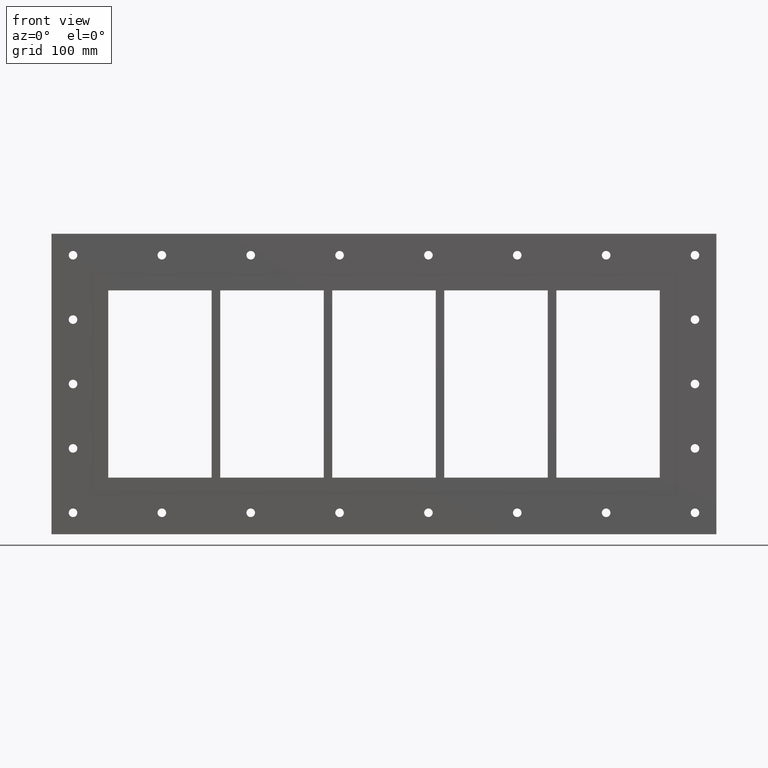
[diagram: clean part render]
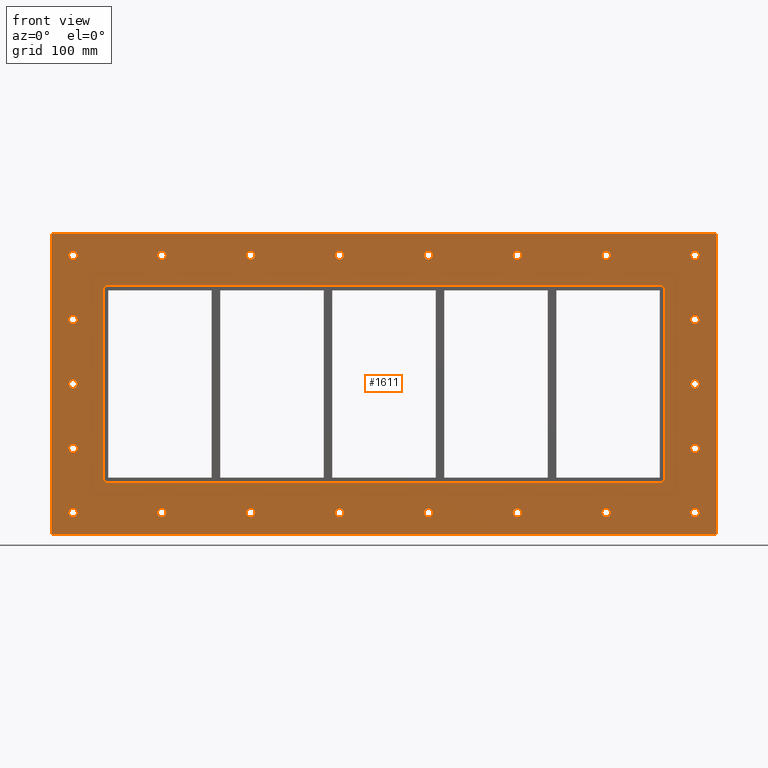
[diagram: same view with one face highlighted and labeled with its STEP entity id]
A machine part, front view. The second image highlights one B-rep face of the part: STEP entity #1611.
In plain terms, the highlighted planar face has unit normal (0, 1, 0).
Its self-contained STEP definition (entity closure, byte-faithful):
#84=CARTESIAN_POINT('',(-357.25000000000011,0.0,-150.0));
#85=VERTEX_POINT('',#84);
#86=CARTESIAN_POINT('',(-362.25000000000011,0.0,-150.0));
#87=DIRECTION('',(0.0,1.0,0.0));
#88=DIRECTION('',(1.0,0.0,0.0));
#89=AXIS2_PLACEMENT_3D('',#86,#87,#88);
#90=CIRCLE('',#89,5.0);
#91=EDGE_CURVE('',#85,#85,#90,.T.);
#112=CARTESIAN_POINT('',(367.25000000000011,0.0,-75.0));
#113=VERTEX_POINT('',#112);
#114=CARTESIAN_POINT('',(362.25000000000011,0.0,-75.0));
#115=DIRECTION('',(0.0,1.0,0.0));
#116=DIRECTION('',(1.0,0.0,0.0));
#117=AXIS2_PLACEMENT_3D('',#114,#115,#116);
#118=CIRCLE('',#117,5.0);
#119=EDGE_CURVE('',#113,#113,#118,.T.);
#140=CARTESIAN_POINT('',(-357.25000000000011,0.0,-75.0));
#141=VERTEX_POINT('',#140);
#142=CARTESIAN_POINT('',(-362.25000000000011,0.0,-75.0));
#143=DIRECTION('',(0.0,1.0,0.0));
#144=DIRECTION('',(1.0,0.0,0.0));
#145=AXIS2_PLACEMENT_3D('',#142,#143,#144);
#146=CIRCLE('',#145,5.0);
#147=EDGE_CURVE('',#141,#141,#146,.T.);
#168=CARTESIAN_POINT('',(367.25000000000011,0.0,0.0));
#169=VERTEX_POINT('',#168);
#170=CARTESIAN_POINT('',(362.25000000000011,0.0,0.0));
#171=DIRECTION('',(0.0,1.0,0.0));
#172=DIRECTION('',(1.0,0.0,0.0));
#173=AXIS2_PLACEMENT_3D('',#170,#171,#172);
#174=CIRCLE('',#173,5.0);
#175=EDGE_CURVE('',#169,#169,#174,.T.);
#196=CARTESIAN_POINT('',(-357.25000000000011,0.0,0.0));
#197=VERTEX_POINT('',#196);
#198=CARTESIAN_POINT('',(-362.25000000000011,0.0,0.0));
#199=DIRECTION('',(0.0,1.0,0.0));
#200=DIRECTION('',(1.0,0.0,0.0));
#201=AXIS2_PLACEMENT_3D('',#198,#199,#200);
#202=CIRCLE('',#201,5.0);
#203=EDGE_CURVE('',#197,#197,#202,.T.);
#224=CARTESIAN_POINT('',(367.25000000000011,0.0,75.0));
#225=VERTEX_POINT('',#224);
#226=CARTESIAN_POINT('',(362.25000000000011,0.0,75.0));
#227=DIRECTION('',(0.0,1.0,0.0));
#228=DIRECTION('',(1.0,0.0,0.0));
#229=AXIS2_PLACEMENT_3D('',#226,#227,#228);
#230=CIRCLE('',#229,5.0);
#231=EDGE_CURVE('',#225,#225,#230,.T.);
#252=CARTESIAN_POINT('',(-357.25000000000011,0.0,75.0));
#253=VERTEX_POINT('',#252);
#254=CARTESIAN_POINT('',(-362.25000000000011,0.0,75.0));
#255=DIRECTION('',(0.0,1.0,0.0));
#256=DIRECTION('',(1.0,0.0,0.0));
#257=AXIS2_PLACEMENT_3D('',#254,#255,#256);
#258=CIRCLE('',#257,5.0);
#259=EDGE_CURVE('',#253,#253,#258,.T.);
#280=CARTESIAN_POINT('',(-253.75,0.0,150.0));
#281=VERTEX_POINT('',#280);
#282=CARTESIAN_POINT('',(-258.75,0.0,150.0));
#283=DIRECTION('',(0.0,1.0,0.0));
#284=DIRECTION('',(1.0,0.0,0.0));
#285=AXIS2_PLACEMENT_3D('',#282,#283,#284);
#286=CIRCLE('',#285,5.0);
#287=EDGE_CURVE('',#281,#281,#286,.T.);
#308=CARTESIAN_POINT('',(-253.75,0.0,-150.0));
#309=VERTEX_POINT('',#308);
#310=CARTESIAN_POINT('',(-258.75,0.0,-150.0));
#311=DIRECTION('',(0.0,1.0,0.0));
#312=DIRECTION('',(1.0,0.0,0.0));
#313=AXIS2_PLACEMENT_3D('',#310,#311,#312);
#314=CIRCLE('',#313,5.0);
#315=EDGE_CURVE('',#309,#309,#314,.T.);
#336=CARTESIAN_POINT('',(-150.25,0.0,150.0));
#337=VERTEX_POINT('',#336);
#338=CARTESIAN_POINT('',(-155.25,0.0,150.0));
#339=DIRECTION('',(0.0,1.0,0.0));
#340=DIRECTION('',(1.0,0.0,0.0));
#341=AXIS2_PLACEMENT_3D('',#338,#339,#340);
#342=CIRCLE('',#341,5.0);
#343=EDGE_CURVE('',#337,#337,#342,.T.);
#364=CARTESIAN_POINT('',(-150.25,0.0,-150.0));
#365=VERTEX_POINT('',#364);
#366=CARTESIAN_POINT('',(-155.25,0.0,-150.0));
#367=DIRECTION('',(0.0,1.0,0.0));
#368=DIRECTION('',(1.0,0.0,0.0));
#369=AXIS2_PLACEMENT_3D('',#366,#367,#368);
#370=CIRCLE('',#369,5.0);
#371=EDGE_CURVE('',#365,#365,#370,.T.);
#392=CARTESIAN_POINT('',(-46.749999999999972,0.0,150.0));
#393=VERTEX_POINT('',#392);
#394=CARTESIAN_POINT('',(-51.749999999999972,0.0,150.0));
#395=DIRECTION('',(0.0,1.0,0.0));
#396=DIRECTION('',(1.0,0.0,0.0));
#397=AXIS2_PLACEMENT_3D('',#394,#395,#396);
#398=CIRCLE('',#397,5.0);
#399=EDGE_CURVE('',#393,#393,#398,.T.);
#420=CARTESIAN_POINT('',(-46.749999999999972,0.0,-150.0));
#421=VERTEX_POINT('',#420);
#422=CARTESIAN_POINT('',(-51.749999999999972,0.0,-150.0));
#423=DIRECTION('',(0.0,1.0,0.0));
#424=DIRECTION('',(1.0,0.0,0.0));
#425=AXIS2_PLACEMENT_3D('',#422,#423,#424);
#426=CIRCLE('',#425,5.0);
#427=EDGE_CURVE('',#421,#421,#426,.T.);
#448=CARTESIAN_POINT('',(56.750000000000043,0.0,150.0));
#449=VERTEX_POINT('',#448);
#450=CARTESIAN_POINT('',(51.750000000000043,0.0,150.0));
#451=DIRECTION('',(0.0,1.0,0.0));
#452=DIRECTION('',(1.0,0.0,0.0));
#453=AXIS2_PLACEMENT_3D('',#450,#451,#452);
#454=CIRCLE('',#453,5.0);
#455=EDGE_CURVE('',#449,#449,#454,.T.);
#476=CARTESIAN_POINT('',(56.750000000000043,0.0,-150.0));
#477=VERTEX_POINT('',#476);
#478=CARTESIAN_POINT('',(51.750000000000043,0.0,-150.0));
#479=DIRECTION('',(0.0,1.0,0.0));
#480=DIRECTION('',(1.0,0.0,0.0));
#481=AXIS2_PLACEMENT_3D('',#478,#479,#480);
#482=CIRCLE('',#481,5.0);
#483=EDGE_CURVE('',#477,#477,#482,.T.);
#504=CARTESIAN_POINT('',(160.25000000000006,0.0,150.0));
#505=VERTEX_POINT('',#504);
#506=CARTESIAN_POINT('',(155.25000000000006,0.0,150.0));
#507=DIRECTION('',(0.0,1.0,0.0));
#508=DIRECTION('',(1.0,0.0,0.0));
#509=AXIS2_PLACEMENT_3D('',#506,#507,#508);
#510=CIRCLE('',#509,5.0);
#511=EDGE_CURVE('',#505,#505,#510,.T.);
#532=CARTESIAN_POINT('',(160.25000000000006,0.0,-150.0));
#533=VERTEX_POINT('',#532);
#534=CARTESIAN_POINT('',(155.25000000000006,0.0,-150.0));
#535=DIRECTION('',(0.0,1.0,0.0));
#536=DIRECTION('',(1.0,0.0,0.0));
#537=AXIS2_PLACEMENT_3D('',#534,#535,#536);
#538=CIRCLE('',#537,5.0);
#539=EDGE_CURVE('',#533,#533,#538,.T.);
#560=CARTESIAN_POINT('',(263.75000000000006,0.0,150.0));
#561=VERTEX_POINT('',#560);
#562=CARTESIAN_POINT('',(258.75000000000006,0.0,150.0));
#563=DIRECTION('',(0.0,1.0,0.0));
#564=DIRECTION('',(1.0,0.0,0.0));
#565=AXIS2_PLACEMENT_3D('',#562,#563,#564);
#566=CIRCLE('',#565,5.0);
#567=EDGE_CURVE('',#561,#561,#566,.T.);
#588=CARTESIAN_POINT('',(263.75000000000006,0.0,-150.0));
#589=VERTEX_POINT('',#588);
#590=CARTESIAN_POINT('',(258.75000000000006,0.0,-150.0));
#591=DIRECTION('',(0.0,1.0,0.0));
#592=DIRECTION('',(1.0,0.0,0.0));
#593=AXIS2_PLACEMENT_3D('',#590,#591,#592);
#594=CIRCLE('',#593,5.0);
#595=EDGE_CURVE('',#589,#589,#594,.T.);
#616=CARTESIAN_POINT('',(367.25000000000011,0.0,-150.0));
#617=VERTEX_POINT('',#616);
#618=CARTESIAN_POINT('',(362.25000000000011,0.0,-150.0));
#619=DIRECTION('',(0.0,1.0,0.0));
#620=DIRECTION('',(1.0,0.0,0.0));
#621=AXIS2_PLACEMENT_3D('',#618,#619,#620);
#622=CIRCLE('',#621,5.0);
#623=EDGE_CURVE('',#617,#617,#622,.T.);
#644=CARTESIAN_POINT('',(-357.25000000000011,0.0,150.0));
#645=VERTEX_POINT('',#644);
#646=CARTESIAN_POINT('',(-362.25000000000011,0.0,150.0));
#647=DIRECTION('',(0.0,1.0,0.0));
#648=DIRECTION('',(1.0,0.0,0.0));
#649=AXIS2_PLACEMENT_3D('',#646,#647,#648);
#650=CIRCLE('',#649,5.0);
#651=EDGE_CURVE('',#645,#645,#650,.T.);
#672=CARTESIAN_POINT('',(367.25000000000011,0.0,150.0));
#673=VERTEX_POINT('',#672);
#674=CARTESIAN_POINT('',(362.25000000000011,0.0,150.0));
#675=DIRECTION('',(0.0,1.0,0.0));
#676=DIRECTION('',(1.0,0.0,0.0));
#677=AXIS2_PLACEMENT_3D('',#674,#675,#676);
#678=CIRCLE('',#677,5.0);
#679=EDGE_CURVE('',#673,#673,#678,.T.);
#1436=CARTESIAN_POINT('',(0.0,0.0,0.0));
#1437=DIRECTION('',(0.0,1.0,0.0));
#1438=DIRECTION('',(0.0,0.0,1.0));
#1439=AXIS2_PLACEMENT_3D('',#1436,#1437,#1438);
#1440=PLANE('',#1439);
#1441=CARTESIAN_POINT('',(-387.25,0.0,175.0));
#1442=VERTEX_POINT('',#1441);
#1443=CARTESIAN_POINT('',(387.25,0.0,175.0));
#1444=VERTEX_POINT('',#1443);
#1445=CARTESIAN_POINT('',(-387.25,0.0,175.0));
#1446=DIRECTION('',(1.0,0.0,0.0));
#1447=VECTOR('',#1446,774.5);
#1448=LINE('',#1445,#1447);
#1449=EDGE_CURVE('',#1442,#1444,#1448,.T.);
#1450=ORIENTED_EDGE('',*,*,#1449,.F.);
#1451=CARTESIAN_POINT('',(-387.25,0.0,-175.0));
#1452=VERTEX_POINT('',#1451);
#1453=CARTESIAN_POINT('',(-387.25,0.0,-175.0));
#1454=DIRECTION('',(0.0,0.0,1.0));
#1455=VECTOR('',#1454,350.0);
#1456=LINE('',#1453,#1455);
#1457=EDGE_CURVE('',#1452,#1442,#1456,.T.);
#1458=ORIENTED_EDGE('',*,*,#1457,.F.);
#1459=CARTESIAN_POINT('',(387.25,0.0,-175.0));
#1460=VERTEX_POINT('',#1459);
#1461=CARTESIAN_POINT('',(387.25,0.0,-175.0));
#1462=DIRECTION('',(-1.0,0.0,0.0));
#1463=VECTOR('',#1462,774.5);
#1464=LINE('',#1461,#1463);
#1465=EDGE_CURVE('',#1460,#1452,#1464,.T.);
#1466=ORIENTED_EDGE('',*,*,#1465,.F.);
#1467=CARTESIAN_POINT('',(387.25,0.0,175.0));
#1468=DIRECTION('',(0.0,0.0,-1.0));
#1469=VECTOR('',#1468,350.0);
#1470=LINE('',#1467,#1469);
#1471=EDGE_CURVE('',#1444,#1460,#1470,.T.);
#1472=ORIENTED_EDGE('',*,*,#1471,.F.);
#1473=EDGE_LOOP('',(#1450,#1458,#1466,#1472));
#1474=FACE_OUTER_BOUND('',#1473,.T.);
#1475=ORIENTED_EDGE('',*,*,#91,.T.);
#1476=EDGE_LOOP('',(#1475));
#1477=FACE_BOUND('',#1476,.T.);
#1478=ORIENTED_EDGE('',*,*,#119,.T.);
#1479=EDGE_LOOP('',(#1478));
#1480=FACE_BOUND('',#1479,.T.);
#1481=ORIENTED_EDGE('',*,*,#147,.T.);
#1482=EDGE_LOOP('',(#1481));
#1483=FACE_BOUND('',#1482,.T.);
#1484=ORIENTED_EDGE('',*,*,#175,.T.);
#1485=EDGE_LOOP('',(#1484));
#1486=FACE_BOUND('',#1485,.T.);
#1487=ORIENTED_EDGE('',*,*,#203,.T.);
#1488=EDGE_LOOP('',(#1487));
#1489=FACE_BOUND('',#1488,.T.);
#1490=ORIENTED_EDGE('',*,*,#231,.T.);
#1491=EDGE_LOOP('',(#1490));
#1492=FACE_BOUND('',#1491,.T.);
#1493=ORIENTED_EDGE('',*,*,#259,.T.);
#1494=EDGE_LOOP('',(#1493));
#1495=FACE_BOUND('',#1494,.T.);
#1496=ORIENTED_EDGE('',*,*,#287,.T.);
#1497=EDGE_LOOP('',(#1496));
#1498=FACE_BOUND('',#1497,.T.);
#1499=ORIENTED_EDGE('',*,*,#315,.T.);
#1500=EDGE_LOOP('',(#1499));
#1501=FACE_BOUND('',#1500,.T.);
#1502=ORIENTED_EDGE('',*,*,#343,.T.);
#1503=EDGE_LOOP('',(#1502));
#1504=FACE_BOUND('',#1503,.T.);
#1505=ORIENTED_EDGE('',*,*,#371,.T.);
#1506=EDGE_LOOP('',(#1505));
#1507=FACE_BOUND('',#1506,.T.);
#1508=ORIENTED_EDGE('',*,*,#399,.T.);
#1509=EDGE_LOOP('',(#1508));
#1510=FACE_BOUND('',#1509,.T.);
#1511=ORIENTED_EDGE('',*,*,#427,.T.);
#1512=EDGE_LOOP('',(#1511));
#1513=FACE_BOUND('',#1512,.T.);
#1514=ORIENTED_EDGE('',*,*,#455,.T.);
#1515=EDGE_LOOP('',(#1514));
#1516=FACE_BOUND('',#1515,.T.);
#1517=ORIENTED_EDGE('',*,*,#483,.T.);
#1518=EDGE_LOOP('',(#1517));
#1519=FACE_BOUND('',#1518,.T.);
#1520=ORIENTED_EDGE('',*,*,#511,.T.);
#1521=EDGE_LOOP('',(#1520));
#1522=FACE_BOUND('',#1521,.T.);
#1523=ORIENTED_EDGE('',*,*,#539,.T.);
#1524=EDGE_LOOP('',(#1523));
#1525=FACE_BOUND('',#1524,.T.);
#1526=ORIENTED_EDGE('',*,*,#567,.T.);
#1527=EDGE_LOOP('',(#1526));
#1528=FACE_BOUND('',#1527,.T.);
#1529=ORIENTED_EDGE('',*,*,#595,.T.);
#1530=EDGE_LOOP('',(#1529));
#1531=FACE_BOUND('',#1530,.T.);
#1532=ORIENTED_EDGE('',*,*,#623,.T.);
#1533=EDGE_LOOP('',(#1532));
#1534=FACE_BOUND('',#1533,.T.);
#1535=ORIENTED_EDGE('',*,*,#651,.T.);
#1536=EDGE_LOOP('',(#1535));
#1537=FACE_BOUND('',#1536,.T.);
#1538=ORIENTED_EDGE('',*,*,#679,.T.);
#1539=EDGE_LOOP('',(#1538));
#1540=FACE_BOUND('',#1539,.T.);
#1541=CARTESIAN_POINT('',(-327.24999999999994,0.0,-108.99999999999999));
#1542=VERTEX_POINT('',#1541);
#1543=CARTESIAN_POINT('',(-321.24999999999989,0.0,-115.0));
#1544=VERTEX_POINT('',#1543);
#1545=CARTESIAN_POINT('',(-321.24999999999989,0.0,-108.99999999999999));
#1546=DIRECTION('',(0.0,-1.0,0.0));
#1547=DIRECTION('',(-0.707106781186552,0.0,-0.707106781186543));
#1548=AXIS2_PLACEMENT_3D('',#1545,#1546,#1547);
#1549=CIRCLE('',#1548,6.0);
#1550=EDGE_CURVE('',#1542,#1544,#1549,.T.);
#1551=ORIENTED_EDGE('',*,*,#1550,.F.);
#1552=CARTESIAN_POINT('',(-327.24999999999994,0.0,108.99999999999999));
#1553=VERTEX_POINT('',#1552);
#1554=CARTESIAN_POINT('',(-327.24999999999994,0.0,109.0));
#1555=DIRECTION('',(0.0,0.0,-1.0));
#1556=VECTOR('',#1555,218.0);
#1557=LINE('',#1554,#1556);
#1558=EDGE_CURVE('',#1553,#1542,#1557,.T.);
#1559=ORIENTED_EDGE('',*,*,#1558,.F.);
#1560=CARTESIAN_POINT('',(-321.25,0.0,115.0));
#1561=VERTEX_POINT('',#1560);
#1562=CARTESIAN_POINT('',(-321.25,0.0,108.99999999999999));
#1563=DIRECTION('',(0.0,-1.0,0.0));
#1564=DIRECTION('',(-0.707106781186543,0.0,0.707106781186552));
#1565=AXIS2_PLACEMENT_3D('',#1562,#1563,#1564);
#1566=CIRCLE('',#1565,6.000000000000001);
#1567=EDGE_CURVE('',#1561,#1553,#1566,.T.);
#1568=ORIENTED_EDGE('',*,*,#1567,.F.);
#1569=CARTESIAN_POINT('',(321.25,0.0,115.0));
#1570=VERTEX_POINT('',#1569);
#1571=CARTESIAN_POINT('',(321.25,0.0,115.0));
#1572=DIRECTION('',(-1.0,0.0,0.0));
#1573=VECTOR('',#1572,642.5);
#1574=LINE('',#1571,#1573);
#1575=EDGE_CURVE('',#1570,#1561,#1574,.T.);
#1576=ORIENTED_EDGE('',*,*,#1575,.F.);
#1577=CARTESIAN_POINT('',(327.25000000000011,0.0,109.0));
#1578=VERTEX_POINT('',#1577);
#1579=CARTESIAN_POINT('',(321.25,0.0,109.0));
#1580=DIRECTION('',(0.0,-1.0,0.0));
#1581=DIRECTION('',(0.707106781186554,0.0,0.707106781186541));
#1582=AXIS2_PLACEMENT_3D('',#1579,#1580,#1581);
#1583=CIRCLE('',#1582,6.0);
#1584=EDGE_CURVE('',#1578,#1570,#1583,.T.);
#1585=ORIENTED_EDGE('',*,*,#1584,.F.);
#1586=CARTESIAN_POINT('',(327.25000000000011,0.0,-108.99999999999999));
#1587=VERTEX_POINT('',#1586);
#1588=CARTESIAN_POINT('',(327.25000000000011,0.0,-109.0));
#1589=DIRECTION('',(0.0,0.0,1.0));
#1590=VECTOR('',#1589,218.0);
#1591=LINE('',#1588,#1590);
#1592=EDGE_CURVE('',#1587,#1578,#1591,.T.);
#1593=ORIENTED_EDGE('',*,*,#1592,.F.);
#1594=CARTESIAN_POINT('',(321.25000000000011,0.0,-115.0));
#1595=VERTEX_POINT('',#1594);
#1596=CARTESIAN_POINT('',(321.25000000000011,0.0,-108.99999999999999));
#1597=DIRECTION('',(0.0,-1.0,0.0));
#1598=DIRECTION('',(0.707106781186543,0.0,-0.707106781186552));
#1599=AXIS2_PLACEMENT_3D('',#1596,#1597,#1598);
#1600=CIRCLE('',#1599,6.000000000000001);
#1601=EDGE_CURVE('',#1595,#1587,#1600,.T.);
#1602=ORIENTED_EDGE('',*,*,#1601,.F.);
#1603=CARTESIAN_POINT('',(-321.24999999999983,0.0,-115.0));
#1604=DIRECTION('',(1.0,0.0,0.0));
#1605=VECTOR('',#1604,642.5);
#1606=LINE('',#1603,#1605);
#1607=EDGE_CURVE('',#1544,#1595,#1606,.T.);
#1608=ORIENTED_EDGE('',*,*,#1607,.F.);
#1609=EDGE_LOOP('',(#1551,#1559,#1568,#1576,#1585,#1593,#1602,#1608));
#1610=FACE_BOUND('',#1609,.T.);
#1611=ADVANCED_FACE('',(#1474,#1477,#1480,#1483,#1486,#1489,#1492,#1495,#1498,#1501,#1504,#1507,#1510,#1513,#1516,#1519,#1522,#1525,#1528,#1531,#1534,#1537,#1540,#1610),#1440,.F.);